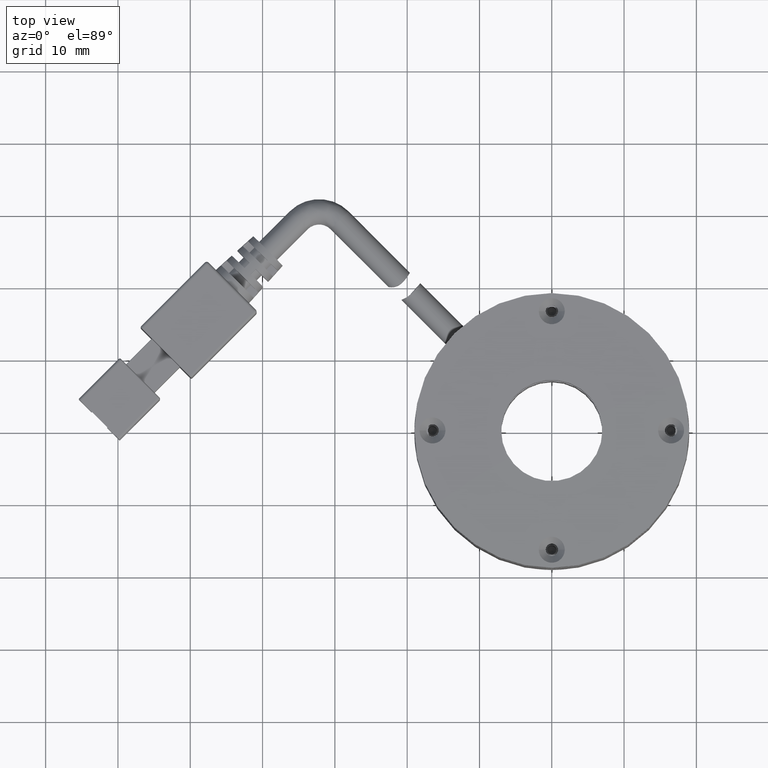
[diagram: clean part render]
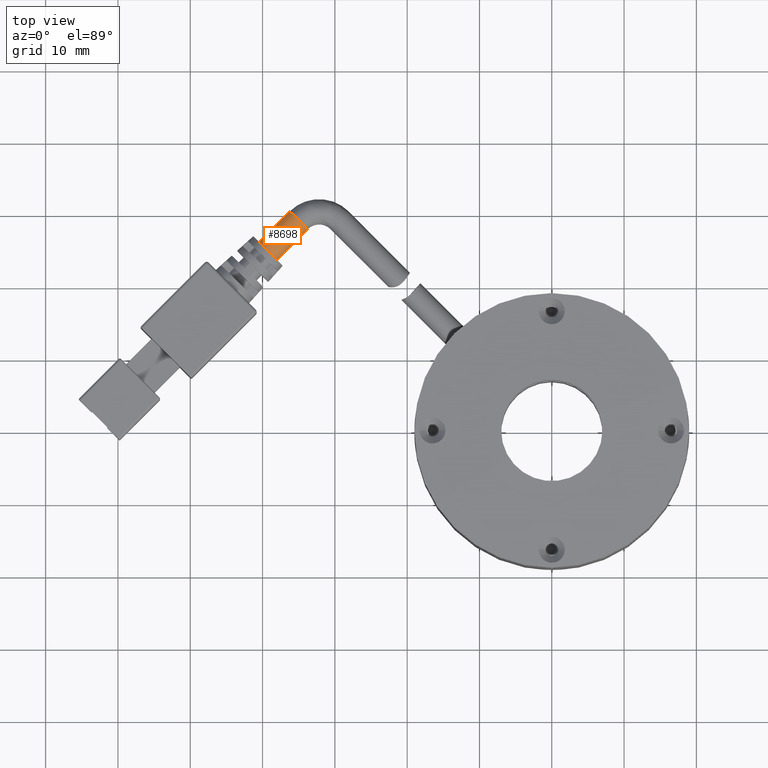
[diagram: same view with one face highlighted and labeled with its STEP entity id]
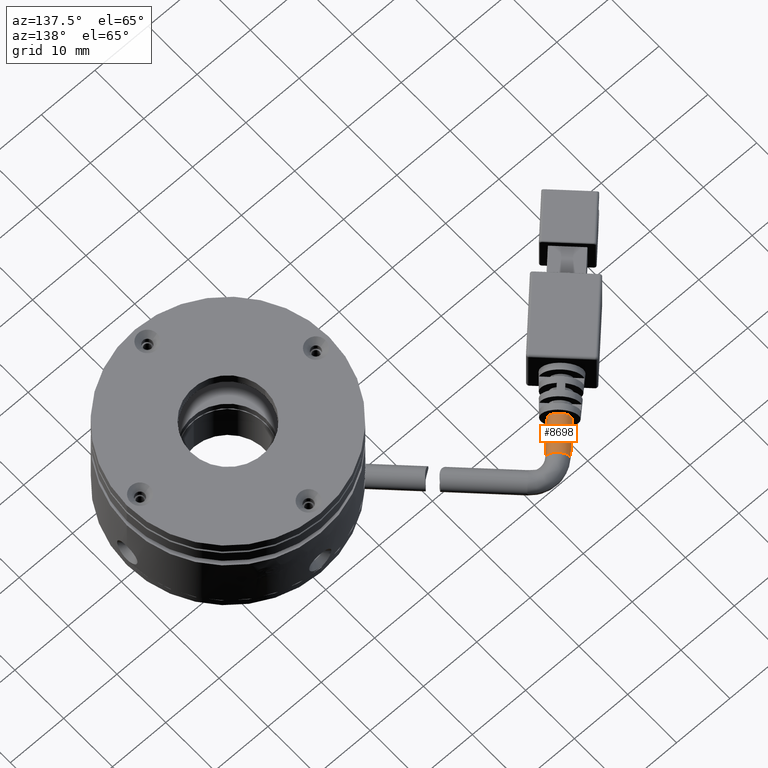
[diagram: same view with one face highlighted and labeled with its STEP entity id]
A machine part, top view. The second image highlights one B-rep face of the part: STEP entity #8698.
A second angle (auxiliary view) of the same face is appended — the face is thin or edge-on in the first view.
In plain terms, the highlighted cylindrical surface (edge-blend (fillet) strip) has radius 1.75 mm, axis along (-0.7071, -0.7071, -0).
Its self-contained STEP definition (entity closure, byte-faithful):
#776 = AXIS2_PLACEMENT_3D ( 'NONE', #18787, #7343, #20734 ) ;
#1305 = LINE ( 'NONE', #3675, #5816 ) ;
#1714 = DIRECTION ( 'NONE',  ( -0.7071067811865428000, -0.7071067811865522400, -1.682570589009794600E-016 ) ) ;
#3255 = ORIENTED_EDGE ( 'NONE', *, *, #22506, .F. ) ;
#3364 = AXIS2_PLACEMENT_3D ( 'NONE', #7274, #22696, #13264 ) ;
#3638 = EDGE_CURVE ( 'NONE', #8537, #11843, #1305, .T. ) ;
#3675 = CARTESIAN_POINT ( 'NONE',  ( -38.36054287937028600, 28.46104794275832000, -5.135083653659808800 ) ) ;
#4353 = CIRCLE ( 'NONE', #17560, 1.750000000000001300 ) ;
#4631 = EDGE_LOOP ( 'NONE', ( #5005, #10114, #19665, #3255 ) ) ;
#5005 = ORIENTED_EDGE ( 'NONE', *, *, #5496, .F. ) ;
#5496 = EDGE_CURVE ( 'NONE', #17550, #7929, #5638, .T. ) ;
#5510 = CARTESIAN_POINT ( 'NONE',  ( -38.00698948877697300, 23.86485386504576000, -5.135083653659809700 ) ) ;
#5638 = LINE ( 'NONE', #22300, #10101 ) ;
#5816 = VECTOR ( 'NONE', #1714, 1000.000000000000000 ) ;
#6959 = CARTESIAN_POINT ( 'NONE',  ( -36.23922253581066100, 30.58236828631798300, -5.135083653659808800 ) ) ;
#7274 = CARTESIAN_POINT ( 'NONE',  ( -37.12310601229381700, 27.22361107568187000, -5.135083653659808800 ) ) ;
#7343 = DIRECTION ( 'NONE',  ( -0.7071067811865428000, -0.7071067811865522400, -1.682570589009794600E-016 ) ) ;
#7929 = VERTEX_POINT ( 'NONE', #5510 ) ;
#8537 = VERTEX_POINT ( 'NONE', #6959 ) ;
#8698 = ADVANCED_FACE ( 'NONE', ( #15367 ), #18040, .T. ) ;
#8886 = DIRECTION ( 'NONE',  ( -0.7071067811865428000, -0.7071067811865522400, -1.682570589009794600E-016 ) ) ;
#10101 = VECTOR ( 'NONE', #12804, 1000.000000000000000 ) ;
#10114 = ORIENTED_EDGE ( 'NONE', *, *, #11486, .T. ) ;
#11320 = CARTESIAN_POINT ( 'NONE',  ( -33.76434880165772500, 28.10749455216508300, -5.135083653659808800 ) ) ;
#11486 = EDGE_CURVE ( 'NONE', #17550, #8537, #4353, .T. ) ;
#11843 = VERTEX_POINT ( 'NONE', #17872 ) ;
#12804 = DIRECTION ( 'NONE',  ( -0.7071067811865428000, -0.7071067811865522400, -1.682570589009794600E-016 ) ) ;
#13264 = DIRECTION ( 'NONE',  ( -0.7071067811865524600, 0.7071067811865425800, 0.0000000000000000000 ) ) ;
#15367 = FACE_OUTER_BOUND ( 'NONE', #4631, .T. ) ;
#17063 = CIRCLE ( 'NONE', #776, 1.750000000000001300 ) ;
#17550 = VERTEX_POINT ( 'NONE', #11320 ) ;
#17560 = AXIS2_PLACEMENT_3D ( 'NONE', #20334, #8886, #22203 ) ;
#17872 = CARTESIAN_POINT ( 'NONE',  ( -40.48186322292991000, 26.33972759919866400, -5.135083653659809700 ) ) ;
#18040 = CYLINDRICAL_SURFACE ( 'NONE', #3364, 1.750000000000001300 ) ;
#18787 = CARTESIAN_POINT ( 'NONE',  ( -39.24442635585344200, 25.10229073212221000, -5.135083653659809700 ) ) ;
#19665 = ORIENTED_EDGE ( 'NONE', *, *, #3638, .T. ) ;
#20334 = CARTESIAN_POINT ( 'NONE',  ( -35.00178566873418600, 29.34493141924152900, -5.135083653659807900 ) ) ;
#20734 = DIRECTION ( 'NONE',  ( -0.7071067811865524600, 0.7071067811865425800, 0.0000000000000000000 ) ) ;
#22203 = DIRECTION ( 'NONE',  ( -0.7071067811865524600, 0.7071067811865425800, 0.0000000000000000000 ) ) ;
#22300 = CARTESIAN_POINT ( 'NONE',  ( -35.88566914521734900, 25.98617420860541900, -5.135083653659808800 ) ) ;
#22506 = EDGE_CURVE ( 'NONE', #7929, #11843, #17063, .T. ) ;
#22696 = DIRECTION ( 'NONE',  ( -0.7071067811865428000, -0.7071067811865522400, -1.682570589009794600E-016 ) ) ;